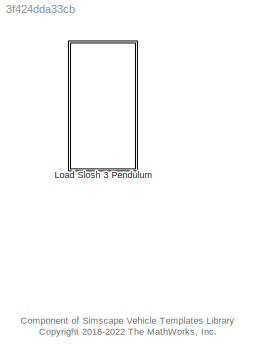
MODEL slx_3f424dda33cb
KIND library
CONFIG AbsTol = auto
CONFIG EnableMultiTasking = off
CONFIG FixedStep = auto
CONFIG MaxStep = auto
CONFIG MinStep = auto
CONFIG RelTol = 1e-3
CONFIG SampleTimeConstraint = Unconstrained
CONFIG SolverName = VariableStepAuto
CONFIG StartTime = 0.0
CONFIG StopTime = 10.0
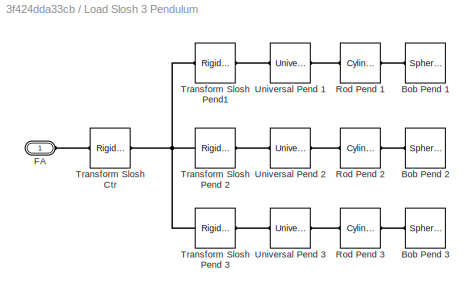
BLOCK [SubSystem] Load Slosh 3 Pendulum
  Ports = [0, 0, 0, 0, 0, 1]
  RequestExecContextInheritance = off
BLOCK [Reference] Load Slosh 3 Pendulum/Bob Pend 1  REF=sm_lib/Body Elements/Spherical Solid
  Ports = [0, 0, 0, 0, 0, 0, 1]
  SourceBlock = sm_lib/Body Elements/Spherical Solid
  SourceProductBaseCode = MS
  SourceType = Spherical Solid
BLOCK [Reference] Load Slosh 3 Pendulum/Bob Pend 2  REF=sm_lib/Body Elements/Spherical Solid
  Ports = [0, 0, 0, 0, 0, 0, 1]
  SourceBlock = sm_lib/Body Elements/Spherical Solid
  SourceProductBaseCode = MS
  SourceType = Spherical Solid
BLOCK [Reference] Load Slosh 3 Pendulum/Bob Pend 3  REF=sm_lib/Body Elements/Spherical Solid
  Ports = [0, 0, 0, 0, 0, 0, 1]
  SourceBlock = sm_lib/Body Elements/Spherical Solid
  SourceProductBaseCode = MS
  SourceType = Spherical Solid
BLOCK [PMIOPort] Load Slosh 3 Pendulum/FA
  Side = Left
BLOCK [Reference] Load Slosh 3 Pendulum/Rod Pend 1  REF=sm_lib/Body Elements/Cylindrical Solid
  Ports = [0, 0, 0, 0, 0, 1, 1]
  SourceBlock = sm_lib/Body Elements/Cylindrical Solid
  SourceProductBaseCode = MS
  SourceType = Cylindrical Solid
BLOCK [Reference] Load Slosh 3 Pendulum/Rod Pend 2  REF=sm_lib/Body Elements/Cylindrical Solid
  Ports = [0, 0, 0, 0, 0, 1, 1]
  SourceBlock = sm_lib/Body Elements/Cylindrical Solid
  SourceProductBaseCode = MS
  SourceType = Cylindrical Solid
BLOCK [Reference] Load Slosh 3 Pendulum/Rod Pend 3  REF=sm_lib/Body Elements/Cylindrical Solid
  Ports = [0, 0, 0, 0, 0, 1, 1]
  SourceBlock = sm_lib/Body Elements/Cylindrical Solid
  SourceProductBaseCode = MS
  SourceType = Cylindrical Solid
BLOCK [Reference] Load Slosh 3 Pendulum/Transform Slosh Ctr  REF=sm_lib/Frames and
Transforms/Rigid
Transform
  Ports = [0, 0, 0, 0, 0, 1, 1]
  SourceBlock = sm_lib/Frames and\nTransforms/Rigid\nTransform
  SourceProductBaseCode = MS
  SourceType = Rigid\nTransform
BLOCK [Reference] Load Slosh 3 Pendulum/Transform Slosh Pend 2  REF=sm_lib/Frames and
Transforms/Rigid
Transform
  Ports = [0, 0, 0, 0, 0, 1, 1]
  SourceBlock = sm_lib/Frames and\nTransforms/Rigid\nTransform
  SourceProductBaseCode = MS
  SourceType = Rigid\nTransform
BLOCK [Reference] Load Slosh 3 Pendulum/Transform Slosh Pend 3  REF=sm_lib/Frames and
Transforms/Rigid
Transform
  Ports = [0, 0, 0, 0, 0, 1, 1]
  SourceBlock = sm_lib/Frames and\nTransforms/Rigid\nTransform
  SourceProductBaseCode = MS
  SourceType = Rigid\nTransform
BLOCK [Reference] Load Slosh 3 Pendulum/Transform Slosh Pend1  REF=sm_lib/Frames and
Transforms/Rigid
Transform
  Ports = [0, 0, 0, 0, 0, 1, 1]
  SourceBlock = sm_lib/Frames and\nTransforms/Rigid\nTransform
  SourceProductBaseCode = MS
  SourceType = Rigid\nTransform
BLOCK [Reference] Load Slosh 3 Pendulum/Universal Pend 1   REF=sm_lib/Joints/Universal
Joint
  Ports = [0, 0, 0, 0, 0, 1, 1]
  SourceBlock = sm_lib/Joints/Universal\nJoint
  SourceProductBaseCode = MS
  SourceType = Universal\nJoint
BLOCK [Reference] Load Slosh 3 Pendulum/Universal Pend 2  REF=sm_lib/Joints/Universal
Joint
  Ports = [0, 0, 0, 0, 0, 1, 1]
  SourceBlock = sm_lib/Joints/Universal\nJoint
  SourceProductBaseCode = MS
  SourceType = Universal\nJoint
BLOCK [Reference] Load Slosh 3 Pendulum/Universal Pend 3  REF=sm_lib/Joints/Universal
Joint
  Ports = [0, 0, 0, 0, 0, 1, 1]
  SourceBlock = sm_lib/Joints/Universal\nJoint
  SourceProductBaseCode = MS
  SourceType = Universal\nJoint
ANNOTATION (root): Component of Simscape Vehicle Templates Library <copyright redacted>
PLINE Load Slosh 3 Pendulum/Bob Pend 1:RConn1 -- Load Slosh 3 Pendulum/Rod Pend 1:RConn1
PLINE Load Slosh 3 Pendulum/Bob Pend 2:RConn1 -- Load Slosh 3 Pendulum/Rod Pend 2:RConn1
PLINE Load Slosh 3 Pendulum/Bob Pend 3:RConn1 -- Load Slosh 3 Pendulum/Rod Pend 3:RConn1
PLINE Load Slosh 3 Pendulum/FA:RConn1 -- Load Slosh 3 Pendulum/Transform Slosh Ctr:LConn1
PLINE Load Slosh 3 Pendulum/Rod Pend 1:LConn1 -- Load Slosh 3 Pendulum/Universal Pend 1 :LConn1
PLINE Load Slosh 3 Pendulum/Rod Pend 2:LConn1 -- Load Slosh 3 Pendulum/Universal Pend 2:LConn1
PLINE Load Slosh 3 Pendulum/Rod Pend 3:LConn1 -- Load Slosh 3 Pendulum/Universal Pend 3:LConn1
PNET net1: Load Slosh 3 Pendulum/Transform Slosh Ctr:RConn1 -- Load Slosh 3 Pendulum/Transform Slosh Pend 2:LConn1 -- Load Slosh 3 Pendulum/Transform Slosh Pend 3:LConn1 -- Load Slosh 3 Pendulum/Transform Slosh Pend1:LConn1
PLINE Load Slosh 3 Pendulum/Transform Slosh Pend 2:RConn1 -- Load Slosh 3 Pendulum/Universal Pend 2:RConn1
PLINE Load Slosh 3 Pendulum/Transform Slosh Pend 3:RConn1 -- Load Slosh 3 Pendulum/Universal Pend 3:RConn1
PLINE Load Slosh 3 Pendulum/Transform Slosh Pend1:RConn1 -- Load Slosh 3 Pendulum/Universal Pend 1 :RConn1
note: PNET lines group multi-terminal physical nets as a canonical sorted terminal list (undirected conserving connections); 2-terminal nets keep the pairwise PLINE form
